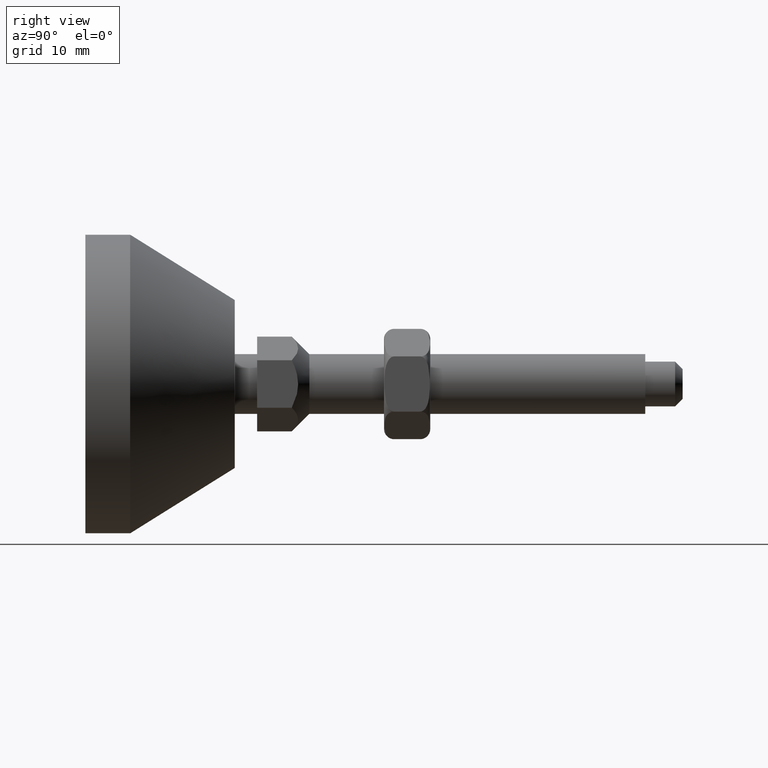
[diagram: clean part render]
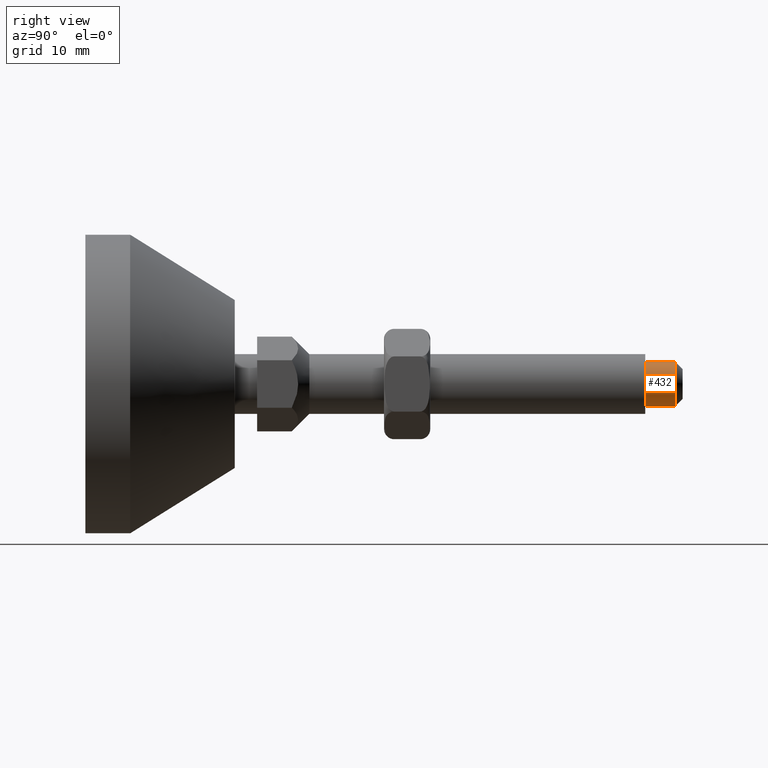
[diagram: same view with one face highlighted and labeled with its STEP entity id]
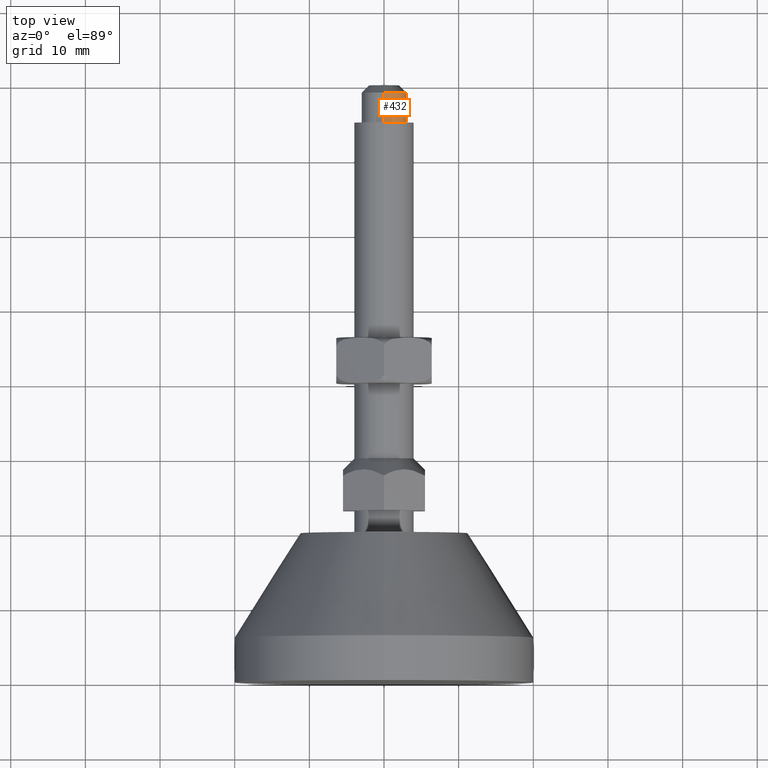
[diagram: same view with one face highlighted and labeled with its STEP entity id]
A machine part, right view. The second image highlights one B-rep face of the part: STEP entity #432.
A second angle (top view) of the same face is appended — the face is thin or edge-on in the first view.
In plain terms, the highlighted cylindrical surface (edge-blend (fillet) strip) has radius 3 mm, axis along (-0, 1, -0).
Its self-contained STEP definition (entity closure, byte-faithful):
#67 = CARTESIAN_POINT ( 'NONE',  ( 0.0000000000000000000, 75.00000000000000000, 3.000000000000000400 ) ) ;
#81 = CARTESIAN_POINT ( 'NONE',  ( 0.0000000000000000000, 79.00000000000000000, -3.000000000000000400 ) ) ;
#88 = CARTESIAN_POINT ( 'NONE',  ( 3.673940397442060400E-016, 75.00000000000000000, -3.000000000000000400 ) ) ;
#162 = DIRECTION ( 'NONE',  ( -0.0000000000000000000, 1.000000000000000000, -0.0000000000000000000 ) ) ;
#177 = DIRECTION ( 'NONE',  ( 0.0000000000000000000, 0.0000000000000000000, 1.000000000000000000 ) ) ;
#178 = CARTESIAN_POINT ( 'NONE',  ( 0.0000000000000000000, 75.00000000000000000, 0.0000000000000000000 ) ) ;
#215 = CARTESIAN_POINT ( 'NONE',  ( 3.673940397442060400E-016, 79.00000000000000000, 3.000000000000000400 ) ) ;
#254 = VERTEX_POINT ( 'NONE', #215 ) ;
#293 = AXIS2_PLACEMENT_3D ( 'NONE', #896, #897, #898 ) ;
#298 = AXIS2_PLACEMENT_3D ( 'NONE', #974, #975, #976 ) ;
#381 = ORIENTED_EDGE ( 'NONE', *, *, #486, .F. ) ;
#382 = ORIENTED_EDGE ( 'NONE', *, *, #489, .T. ) ;
#388 = ORIENTED_EDGE ( 'NONE', *, *, #487, .T. ) ;
#406 = ORIENTED_EDGE ( 'NONE', *, *, #478, .T. ) ;
#432 = ADVANCED_FACE ( 'NONE', ( #642 ), #643, .T. ) ;
#478 = EDGE_CURVE ( 'NONE', #1453, #1474, #708, .T. ) ;
#486 = EDGE_CURVE ( 'NONE', #1453, #254, #715, .T. ) ;
#487 = EDGE_CURVE ( 'NONE', #1467, #254, #718, .T. ) ;
#489 = EDGE_CURVE ( 'NONE', #1474, #1467, #719, .T. ) ;
#642 = FACE_OUTER_BOUND ( 'NONE', #1482, .T. ) ;
#643 = CYLINDRICAL_SURFACE ( 'NONE', #1436, 3.000000000000000400 ) ;
#708 = CIRCLE ( 'NONE', #293, 3.000000000000000400 ) ;
#715 = LINE ( 'NONE', #972, #717 ) ;
#717 = VECTOR ( 'NONE', #973, 1000.000000000000000 ) ;
#718 = CIRCLE ( 'NONE', #298, 3.000000000000000400 ) ;
#719 = LINE ( 'NONE', #980, #721 ) ;
#721 = VECTOR ( 'NONE', #981, 1000.000000000000000 ) ;
#896 = CARTESIAN_POINT ( 'NONE',  ( 0.0000000000000000000, 75.00000000000000000, 0.0000000000000000000 ) ) ;
#897 = DIRECTION ( 'NONE',  ( 0.0000000000000000000, 1.000000000000000000, 0.0000000000000000000 ) ) ;
#898 = DIRECTION ( 'NONE',  ( 0.0000000000000000000, 0.0000000000000000000, 1.000000000000000000 ) ) ;
#972 = CARTESIAN_POINT ( 'NONE',  ( 0.0000000000000000000, 75.00000000000000000, 3.000000000000000400 ) ) ;
#973 = DIRECTION ( 'NONE',  ( -0.0000000000000000000, 1.000000000000000000, -0.0000000000000000000 ) ) ;
#974 = CARTESIAN_POINT ( 'NONE',  ( 0.0000000000000000000, 79.00000000000000000, 0.0000000000000000000 ) ) ;
#975 = DIRECTION ( 'NONE',  ( 0.0000000000000000000, -1.000000000000000000, 0.0000000000000000000 ) ) ;
#976 = DIRECTION ( 'NONE',  ( 0.0000000000000000000, 0.0000000000000000000, 1.000000000000000000 ) ) ;
#980 = CARTESIAN_POINT ( 'NONE',  ( 3.673940397442060400E-016, 75.00000000000000000, -3.000000000000000400 ) ) ;
#981 = DIRECTION ( 'NONE',  ( -0.0000000000000000000, 1.000000000000000000, -0.0000000000000000000 ) ) ;
#1436 = AXIS2_PLACEMENT_3D ( 'NONE', #178, #162, #177 ) ;
#1453 = VERTEX_POINT ( 'NONE', #67 ) ;
#1467 = VERTEX_POINT ( 'NONE', #81 ) ;
#1474 = VERTEX_POINT ( 'NONE', #88 ) ;
#1482 = EDGE_LOOP ( 'NONE', ( #406, #382, #388, #381 ) ) ;